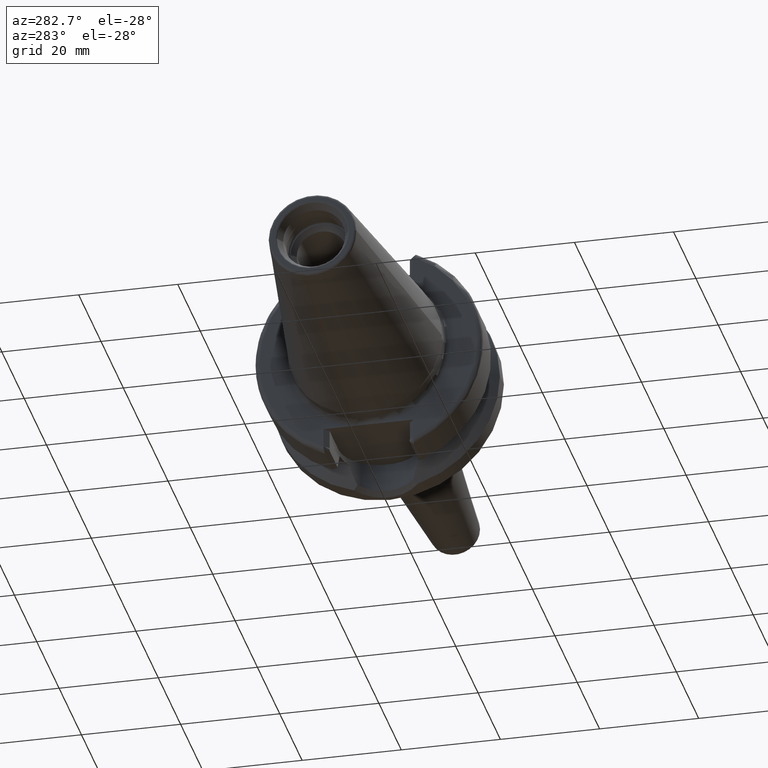
[diagram: clean part render]
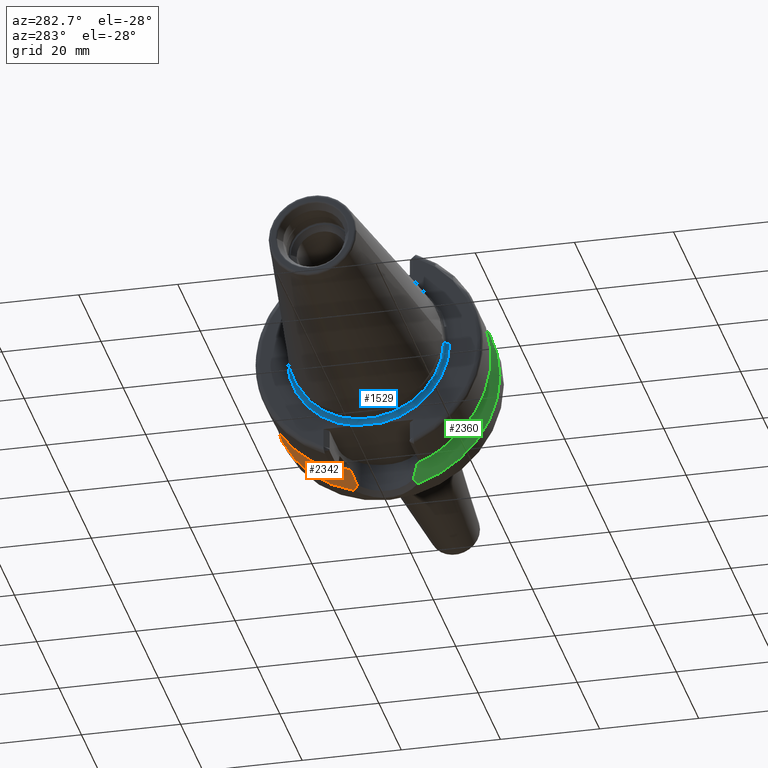
[diagram: same view with three faces highlighted in distinct colors, each labeled with its STEP entity id]
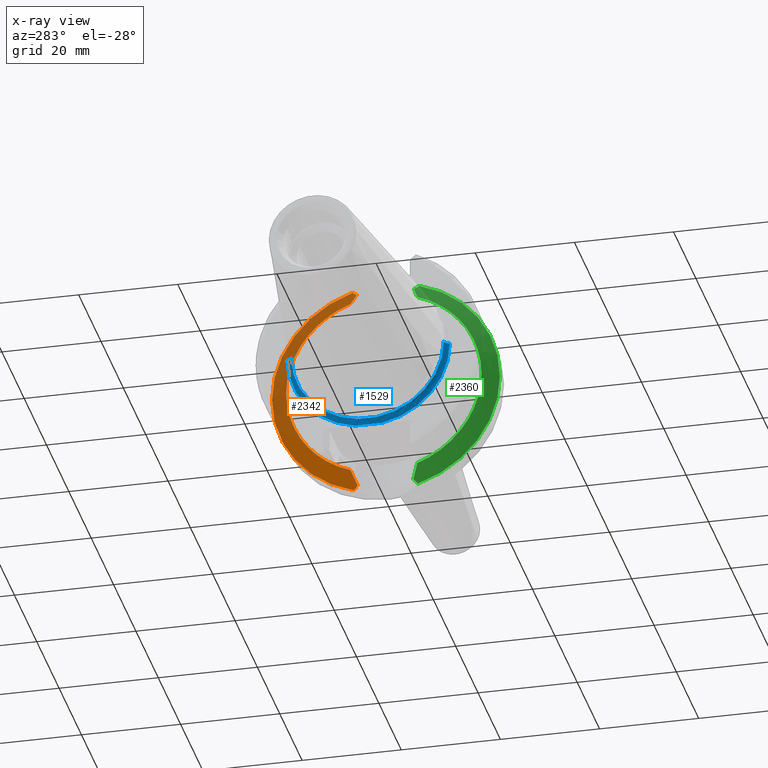
[diagram: x-ray of the same camera — body ghosted, the three highlighted faces saturated]
A machine part, auxiliary view with three faces highlighted in distinct colors.
The next image is the same camera in x-ray (body ghosted, the three faces saturated) — at least one of them is partly hidden behind the body in this view.
Their STEP definitions:

[orange] entity #2342 — the highlighted conical surface has half-angle 60 deg.
#244=CARTESIAN_POINT('',(1.754907584126E1,0.E0,0.E0));
#245=DIRECTION('',(1.E0,0.E0,0.E0));
#246=DIRECTION('',(0.E0,2.802529554758E-1,-9.599261851554E-1));
#247=AXIS2_PLACEMENT_3D('',#244,#245,#246);
#321=CARTESIAN_POINT('',(1.56375E1,6.740639342822E0,-1.848861619239E1));
#322=CARTESIAN_POINT('',(1.580141693669E1,6.631635191826E0,-1.883055017756E1));
#323=CARTESIAN_POINT('',(1.612022880799E1,6.402379286160E0,-1.949407617939E1));
#324=CARTESIAN_POINT('',(1.657016835682E1,6.026547681230E0,-2.042714206942E1));
#325=CARTESIAN_POINT('',(1.685106915981E1,5.755169905209E0,-2.100794481881E1));
#326=CARTESIAN_POINT('',(1.698655422750E1,5.614445679829E0,-2.128775096196E1));
#519=CARTESIAN_POINT('',(1.685762423454E1,5.745354805374E0,2.102137764954E1));
#520=CARTESIAN_POINT('',(1.667158652396E1,5.930008876853E0,2.063686487213E1));
#521=CARTESIAN_POINT('',(1.628166811893E1,6.281182202369E0,1.982963416011E1));
#522=CARTESIAN_POINT('',(1.585764706705E1,6.594242365047E0,1.894784734616E1));
#523=CARTESIAN_POINT('',(1.56375E1,6.740639342822E0,1.848861619239E1));
#749=CARTESIAN_POINT('',(1.56375E1,0.E0,0.E0));
#750=DIRECTION('',(-1.E0,0.E0,0.E0));
#751=DIRECTION('',(0.E0,3.425286351209E-1,9.395073890727E-1));
#752=AXIS2_PLACEMENT_3D('',#749,#750,#751);
#766=CARTESIAN_POINT('',(1.698655422750E1,5.614445679829E0,-2.128775096196E1));
#767=CARTESIAN_POINT('',(1.704704785143E1,5.704776797294E0,-2.137228787957E1));
#768=CARTESIAN_POINT('',(1.716937480752E1,5.886585064290E0,-2.154284936475E1));
#769=CARTESIAN_POINT('',(1.735689240414E1,6.162776097467E0,-2.180317574240E1));
#770=CARTESIAN_POINT('',(1.748456978985E1,6.349213293706E0,-2.197969674892E1));
#771=CARTESIAN_POINT('',(1.754907584126E1,6.443015446388E0,-2.206870299672E1));
#773=CARTESIAN_POINT('',(1.754907584126E1,0.E0,0.E0));
#774=DIRECTION('',(1.E0,0.E0,0.E0));
#775=DIRECTION('',(0.E0,1.E0,0.E0));
#776=AXIS2_PLACEMENT_3D('',#773,#774,#775);
#918=CARTESIAN_POINT('',(1.754907584126E1,6.761871244710E0,2.197310167614E1));
#919=CARTESIAN_POINT('',(1.746924165528E1,6.646331333623E0,2.186398102541E1));
#920=CARTESIAN_POINT('',(1.731157385698E1,6.416997798511E0,2.164799004205E1));
#921=CARTESIAN_POINT('',(1.708106887013E1,6.078162644323E0,2.133072844085E1));
#922=CARTESIAN_POINT('',(1.693143417745E1,5.855724896324E0,2.112374379343E1));
#923=CARTESIAN_POINT('',(1.685762423454E1,5.745354805374E0,2.102137764954E1));
#1178=CARTESIAN_POINT('',(1.56375E1,6.740639342822E0,1.848861619239E1));
#1179=CARTESIAN_POINT('',(1.56375E1,6.740639342822E0,-1.848861619239E1));
#1180=VERTEX_POINT('',#1178);
#1181=VERTEX_POINT('',#1179);
#1194=CARTESIAN_POINT('',(1.754907584126E1,2.299E1,0.E0));
#1195=CARTESIAN_POINT('',(1.754907584126E1,6.761871244710E0,2.197310167614E1));
#1196=VERTEX_POINT('',#1194);
#1197=VERTEX_POINT('',#1195);
#1208=CARTESIAN_POINT('',(1.754907584126E1,6.443015446388E0,-2.206870299672E1));
#1209=VERTEX_POINT('',#1208);
#1297=VERTEX_POINT('',#519);
#1303=VERTEX_POINT('',#326);
#2325=CARTESIAN_POINT('',(1.659328792063E1,0.E0,0.E0));
#2326=DIRECTION('',(1.E0,0.E0,0.E0));
#2327=DIRECTION('',(0.E0,-1.E0,0.E0));
#2328=AXIS2_PLACEMENT_3D('',#2325,#2326,#2327);
#2329=CONICAL_SURFACE('',#2328,2.133452676021E1,6.E1);
#2330=ORIENTED_EDGE('',*,*,#1783,.T.);
#2331=ORIENTED_EDGE('',*,*,#1746,.T.);
#2333=ORIENTED_EDGE('',*,*,#2332,.T.);
#2334=ORIENTED_EDGE('',*,*,#1696,.T.);
#2336=ORIENTED_EDGE('',*,*,#2335,.T.);
#2338=ORIENTED_EDGE('',*,*,#2337,.T.);
#2339=ORIENTED_EDGE('',*,*,#1936,.T.);
#2340=EDGE_LOOP('',(#2330,#2331,#2333,#2334,#2336,#2338,#2339));
#2341=FACE_OUTER_BOUND('',#2340,.F.);
#2342=ADVANCED_FACE('',(#2341),#2329,.T.);
#248=CIRCLE('',#247,2.299E1);
#327=B_SPLINE_CURVE_WITH_KNOTS('',3,(#321,#322,#323,#324,#325,#326),
.UNSPECIFIED.,.F.,.F.,(4,1,1,4),(0.E0,3.333333333333E-1,6.666666666667E-1,1.E0),
.UNSPECIFIED.);
#524=B_SPLINE_CURVE_WITH_KNOTS('',3,(#519,#520,#521,#522,#523),.UNSPECIFIED.,
.F.,.F.,(4,1,4),(0.E0,5.E-1,1.E0),.UNSPECIFIED.);
#753=CIRCLE('',#752,1.967905352042E1);
#772=B_SPLINE_CURVE_WITH_KNOTS('',3,(#766,#767,#768,#769,#770,#771),
.UNSPECIFIED.,.F.,.F.,(4,1,1,4),(0.E0,3.333333333333E-1,6.666666666667E-1,1.E0),
.UNSPECIFIED.);
#777=CIRCLE('',#776,2.299E1);
#924=B_SPLINE_CURVE_WITH_KNOTS('',3,(#918,#919,#920,#921,#922,#923),
.UNSPECIFIED.,.F.,.F.,(4,1,1,4),(0.E0,3.333333333333E-1,6.666666666667E-1,1.E0),
.UNSPECIFIED.);
#1696=EDGE_CURVE('',#1209,#1196,#248,.T.);
#1746=EDGE_CURVE('',#1181,#1303,#327,.T.);
#1783=EDGE_CURVE('',#1180,#1181,#753,.T.);
#1936=EDGE_CURVE('',#1297,#1180,#524,.T.);
#2332=EDGE_CURVE('',#1303,#1209,#772,.T.);
#2335=EDGE_CURVE('',#1196,#1197,#777,.T.);
#2337=EDGE_CURVE('',#1197,#1297,#924,.T.);

[blue] entity #1529 — the highlighted toroidal blend (fillet) surface has major radius 16.375 mm and minor (blend) radius 1 mm.
#91=CARTESIAN_POINT('',(1.E0,0.E0,0.E0));
#92=DIRECTION('',(-1.E0,0.E0,0.E0));
#93=DIRECTION('',(0.E0,1.E0,0.E0));
#94=AXIS2_PLACEMENT_3D('',#91,#92,#93);
#96=CARTESIAN_POINT('',(2.E0,0.E0,0.E0));
#97=DIRECTION('',(-1.E0,0.E0,0.E0));
#98=DIRECTION('',(0.E0,1.E0,0.E0));
#99=AXIS2_PLACEMENT_3D('',#96,#97,#98);
#101=CARTESIAN_POINT('',(1.E0,1.6375E1,0.E0));
#102=DIRECTION('',(0.E0,0.E0,-1.E0));
#103=DIRECTION('',(1.E0,0.E0,0.E0));
#104=AXIS2_PLACEMENT_3D('',#101,#102,#103);
#106=CARTESIAN_POINT('',(1.E0,-1.6375E1,0.E0));
#107=DIRECTION('',(0.E0,0.E0,1.E0));
#108=DIRECTION('',(1.E0,0.E0,0.E0));
#109=AXIS2_PLACEMENT_3D('',#106,#107,#108);
#111=CARTESIAN_POINT('',(2.E0,0.E0,0.E0));
#112=DIRECTION('',(-1.E0,0.E0,0.E0));
#113=DIRECTION('',(0.E0,-1.652032561545E-1,-9.862595419847E-1));
#114=AXIS2_PLACEMENT_3D('',#111,#112,#113);
#116=CARTESIAN_POINT('',(2.E0,2.705203319531E0,-1.615E1));
#117=CARTESIAN_POINT('',(2.E0,2.447526606662E0,-1.615E1));
#118=CARTESIAN_POINT('',(1.994666808081E0,1.932209003313E0,-1.615E1));
#119=CARTESIAN_POINT('',(1.982373677754E0,1.159353659255E0,-1.615E1));
#120=CARTESIAN_POINT('',(1.974023153497E0,3.864772815515E-1,-1.615E1));
#121=CARTESIAN_POINT('',(1.974022947075E0,-3.864455621442E-1,-1.615E1));
#122=CARTESIAN_POINT('',(1.982373315248E0,-1.159330607093E0,-1.615E1));
#123=CARTESIAN_POINT('',(1.994666672291E0,-1.932198796155E0,-1.615E1));
#124=CARTESIAN_POINT('',(2.E0,-2.447523240675E0,-1.615E1));
#125=CARTESIAN_POINT('',(2.E0,-2.705203319531E0,-1.615E1));
#1210=CARTESIAN_POINT('',(2.E0,1.6375E1,0.E0));
#1211=CARTESIAN_POINT('',(1.E0,1.5375E1,0.E0));
#1212=VERTEX_POINT('',#1210);
#1213=VERTEX_POINT('',#1211);
#1216=CARTESIAN_POINT('',(2.E0,-1.6375E1,0.E0));
#1217=CARTESIAN_POINT('',(1.E0,-1.5375E1,0.E0));
#1218=VERTEX_POINT('',#1216);
#1219=VERTEX_POINT('',#1217);
#1288=CARTESIAN_POINT('',(2.E0,2.705203319531E0,-1.615E1));
#1289=VERTEX_POINT('',#1288);
#1290=CARTESIAN_POINT('',(2.E0,-2.705203319531E0,-1.615E1));
#1291=VERTEX_POINT('',#1290);
#1511=CARTESIAN_POINT('',(1.E0,0.E0,0.E0));
#1512=DIRECTION('',(1.E0,0.E0,0.E0));
#1513=DIRECTION('',(0.E0,-1.E0,0.E0));
#1514=AXIS2_PLACEMENT_3D('',#1511,#1512,#1513);
#1515=TOROIDAL_SURFACE('',#1514,1.6375E1,1.E0);
#1517=ORIENTED_EDGE('',*,*,#1516,.F.);
#1519=ORIENTED_EDGE('',*,*,#1518,.T.);
#1520=ORIENTED_EDGE('',*,*,#1506,.T.);
#1522=ORIENTED_EDGE('',*,*,#1521,.F.);
#1524=ORIENTED_EDGE('',*,*,#1523,.F.);
#1526=ORIENTED_EDGE('',*,*,#1525,.F.);
#1527=EDGE_LOOP('',(#1517,#1519,#1520,#1522,#1524,#1526));
#1528=FACE_OUTER_BOUND('',#1527,.F.);
#1529=ADVANCED_FACE('',(#1528),#1515,.F.);
#95=CIRCLE('',#94,1.5375E1);
#100=CIRCLE('',#99,1.6375E1);
#105=CIRCLE('',#104,1.E0);
#110=CIRCLE('',#109,1.E0);
#115=CIRCLE('',#114,1.6375E1);
#126=B_SPLINE_CURVE_WITH_KNOTS('',3,(#116,#117,#118,#119,#120,#121,#122,#123,
#124,#125),.UNSPECIFIED.,.F.,.F.,(4,1,1,1,1,1,1,4),(0.E0,1.428571428571E-1,
2.857142857143E-1,4.285714285714E-1,5.714285714286E-1,7.142857142857E-1,
8.571428571429E-1,1.E0),.UNSPECIFIED.);
#1506=EDGE_CURVE('',#1213,#1219,#95,.T.);
#1516=EDGE_CURVE('',#1212,#1289,#100,.T.);
#1518=EDGE_CURVE('',#1212,#1213,#105,.T.);
#1521=EDGE_CURVE('',#1218,#1219,#110,.T.);
#1523=EDGE_CURVE('',#1291,#1218,#115,.T.);
#1525=EDGE_CURVE('',#1289,#1291,#126,.T.);

[green] entity #2360 — the highlighted conical surface has half-angle 60 deg.
#226=CARTESIAN_POINT('',(1.754907584126E1,0.E0,0.E0));
#227=DIRECTION('',(1.E0,0.E0,0.E0));
#228=DIRECTION('',(0.E0,-1.E0,0.E0));
#229=AXIS2_PLACEMENT_3D('',#226,#227,#228);
#301=CARTESIAN_POINT('',(1.698654743284E1,-5.614452737227E0,-2.128773692951E1));
#302=CARTESIAN_POINT('',(1.685107103184E1,-5.755167619944E0,-2.100794867350E1));
#303=CARTESIAN_POINT('',(1.657018228212E1,-6.026536433094E0,-2.042717096589E1));
#304=CARTESIAN_POINT('',(1.612019321532E1,-6.402407747302E0,-1.949400229719E1));
#305=CARTESIAN_POINT('',(1.580140145437E1,-6.631645487516E0,-1.883051788112E1));
#306=CARTESIAN_POINT('',(1.56375E1,-6.740639342822E0,-1.848861619239E1));
#539=CARTESIAN_POINT('',(1.56375E1,-6.740639342822E0,1.848861619239E1));
#540=CARTESIAN_POINT('',(1.585767247034E1,-6.594225471952E0,1.894790033793E1));
#541=CARTESIAN_POINT('',(1.628171976104E1,-6.281140526994E0,1.982974129959E1));
#542=CARTESIAN_POINT('',(1.667161664884E1,-5.929979516978E0,2.063692715611E1));
#543=CARTESIAN_POINT('',(1.685763265114E1,-5.745346451357E0,2.102139504543E1));
#754=CARTESIAN_POINT('',(1.56375E1,0.E0,0.E0));
#755=DIRECTION('',(-1.E0,0.E0,0.E0));
#756=DIRECTION('',(0.E0,-3.425286351209E-1,-9.395073890727E-1));
#757=AXIS2_PLACEMENT_3D('',#754,#755,#756);
#759=CARTESIAN_POINT('',(1.754907584126E1,-6.443032679053E0,-2.206869796560E1));
#760=CARTESIAN_POINT('',(1.748456901312E1,-6.349229342496E0,-2.197969071488E1));
#761=CARTESIAN_POINT('',(1.735689008885E1,-6.162789812709E0,-2.180316770528E1));
#762=CARTESIAN_POINT('',(1.716937022838E1,-5.886595386436E0,-2.154283832910E1));
#763=CARTESIAN_POINT('',(1.704704179076E1,-5.704784930306E0,-2.137227484606E1));
#764=CARTESIAN_POINT('',(1.698654743284E1,-5.614452737227E0,-2.128773692951E1));
#783=CARTESIAN_POINT('',(1.754907584126E1,0.E0,0.E0));
#784=DIRECTION('',(1.E0,0.E0,0.E0));
#785=DIRECTION('',(0.E0,-2.941213407634E-1,9.557680874080E-1));
#786=AXIS2_PLACEMENT_3D('',#783,#784,#785);
#925=CARTESIAN_POINT('',(1.685763265114E1,-5.745346451357E0,2.102139504543E1));
#926=CARTESIAN_POINT('',(1.693144167990E1,-5.855715160872E0,2.112375997325E1));
#927=CARTESIAN_POINT('',(1.708107453051E1,-6.078150083564E0,2.133074220340E1));
#928=CARTESIAN_POINT('',(1.731157671337E1,-6.416980815637E0,2.164800022547E1));
#929=CARTESIAN_POINT('',(1.746924261241E1,-6.646311278969E0,2.186398885076E1));
#930=CARTESIAN_POINT('',(1.754907584126E1,-6.761849624151E0,2.197310832951E1));
#1182=CARTESIAN_POINT('',(1.56375E1,-6.740639342822E0,-1.848861619239E1));
#1183=CARTESIAN_POINT('',(1.56375E1,-6.740639342822E0,1.848861619239E1));
#1184=VERTEX_POINT('',#1182);
#1185=VERTEX_POINT('',#1183);
#1198=CARTESIAN_POINT('',(1.754907584126E1,-2.299E1,0.E0));
#1199=CARTESIAN_POINT('',(1.754907584126E1,-6.443032679053E0,
-2.206869796560E1));
#1200=VERTEX_POINT('',#1198);
#1201=VERTEX_POINT('',#1199);
#1206=CARTESIAN_POINT('',(1.754907584126E1,-6.761849624151E0,2.197310832951E1));
#1207=VERTEX_POINT('',#1206);
#1296=VERTEX_POINT('',#543);
#1302=VERTEX_POINT('',#301);
#2343=CARTESIAN_POINT('',(1.659328792063E1,0.E0,0.E0));
#2344=DIRECTION('',(1.E0,0.E0,0.E0));
#2345=DIRECTION('',(0.E0,-1.E0,0.E0));
#2346=AXIS2_PLACEMENT_3D('',#2343,#2344,#2345);
#2347=CONICAL_SURFACE('',#2346,2.133452676021E1,6.E1);
#2349=ORIENTED_EDGE('',*,*,#2348,.T.);
#2350=ORIENTED_EDGE('',*,*,#1688,.T.);
#2352=ORIENTED_EDGE('',*,*,#2351,.T.);
#2353=ORIENTED_EDGE('',*,*,#1742,.T.);
#2354=ORIENTED_EDGE('',*,*,#1799,.T.);
#2355=ORIENTED_EDGE('',*,*,#1940,.T.);
#2357=ORIENTED_EDGE('',*,*,#2356,.T.);
#2358=EDGE_LOOP('',(#2349,#2350,#2352,#2353,#2354,#2355,#2357));
#2359=FACE_OUTER_BOUND('',#2358,.F.);
#2360=ADVANCED_FACE('',(#2359),#2347,.T.);
#230=CIRCLE('',#229,2.299E1);
#307=B_SPLINE_CURVE_WITH_KNOTS('',3,(#301,#302,#303,#304,#305,#306),
.UNSPECIFIED.,.F.,.F.,(4,1,1,4),(0.E0,3.333333333333E-1,6.666666666667E-1,1.E0),
.UNSPECIFIED.);
#544=B_SPLINE_CURVE_WITH_KNOTS('',3,(#539,#540,#541,#542,#543),.UNSPECIFIED.,
.F.,.F.,(4,1,4),(0.E0,5.E-1,1.E0),.UNSPECIFIED.);
#758=CIRCLE('',#757,1.967905352042E1);
#765=B_SPLINE_CURVE_WITH_KNOTS('',3,(#759,#760,#761,#762,#763,#764),
.UNSPECIFIED.,.F.,.F.,(4,1,1,4),(0.E0,3.333333333333E-1,6.666666666667E-1,1.E0),
.UNSPECIFIED.);
#787=CIRCLE('',#786,2.299E1);
#931=B_SPLINE_CURVE_WITH_KNOTS('',3,(#925,#926,#927,#928,#929,#930),
.UNSPECIFIED.,.F.,.F.,(4,1,1,4),(0.E0,3.333333333333E-1,6.666666666667E-1,1.E0),
.UNSPECIFIED.);
#1688=EDGE_CURVE('',#1200,#1201,#230,.T.);
#1742=EDGE_CURVE('',#1302,#1184,#307,.T.);
#1799=EDGE_CURVE('',#1184,#1185,#758,.T.);
#1940=EDGE_CURVE('',#1185,#1296,#544,.T.);
#2348=EDGE_CURVE('',#1207,#1200,#787,.T.);
#2351=EDGE_CURVE('',#1201,#1302,#765,.T.);
#2356=EDGE_CURVE('',#1296,#1207,#931,.T.);